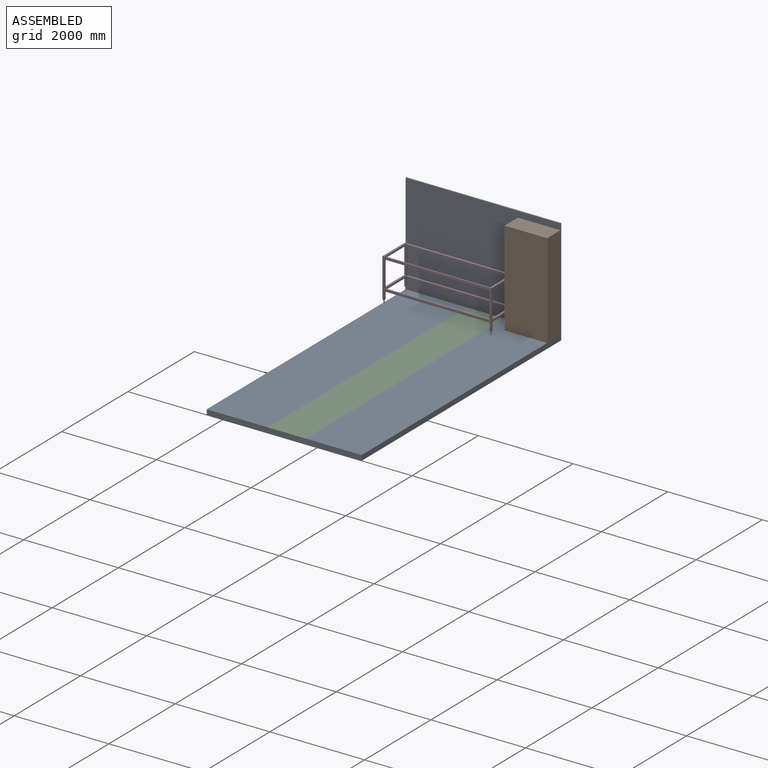
[diagram: assembled view]
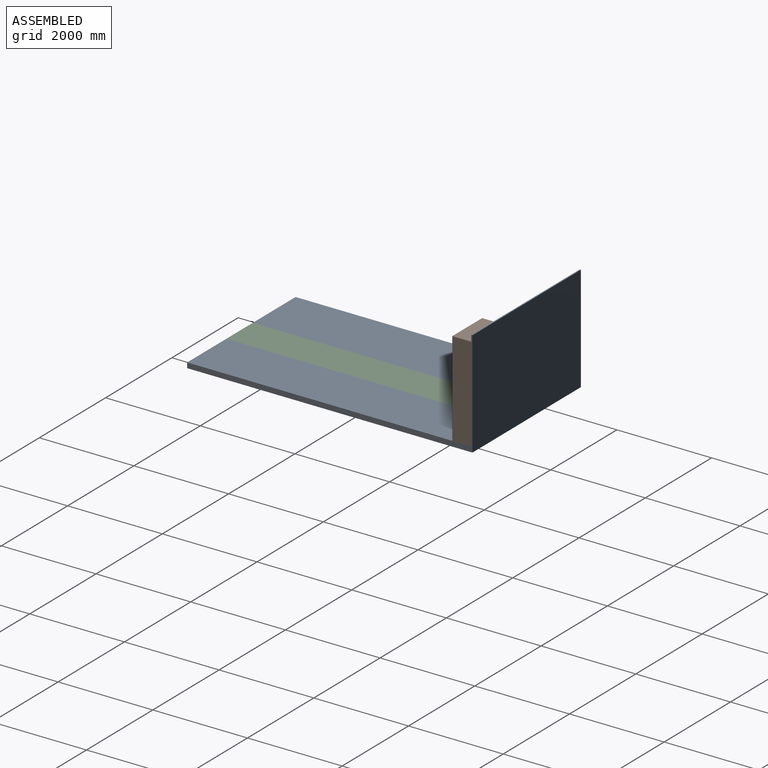
[diagram: assembled view, second angle]
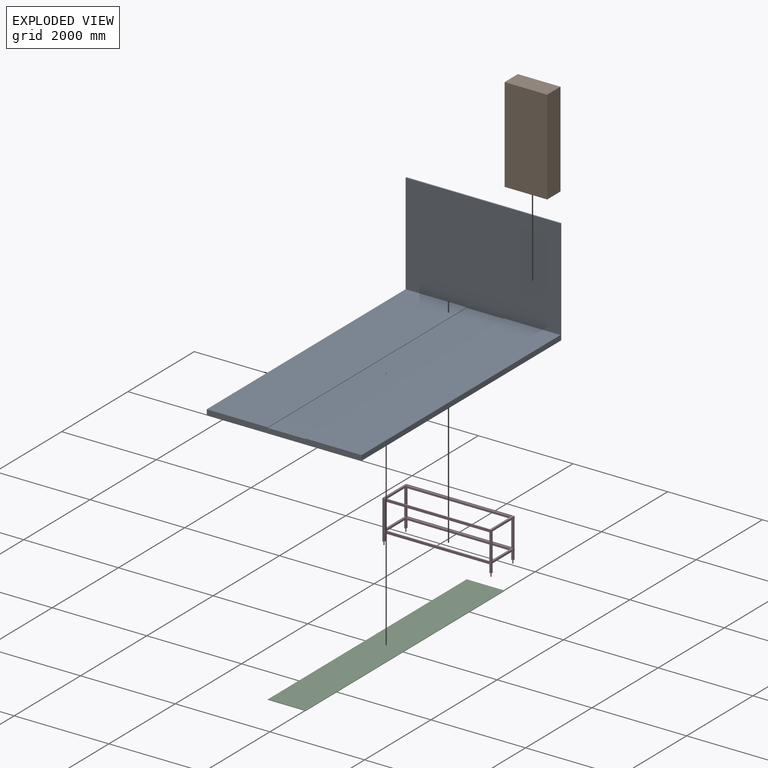
[diagram: exploded view]
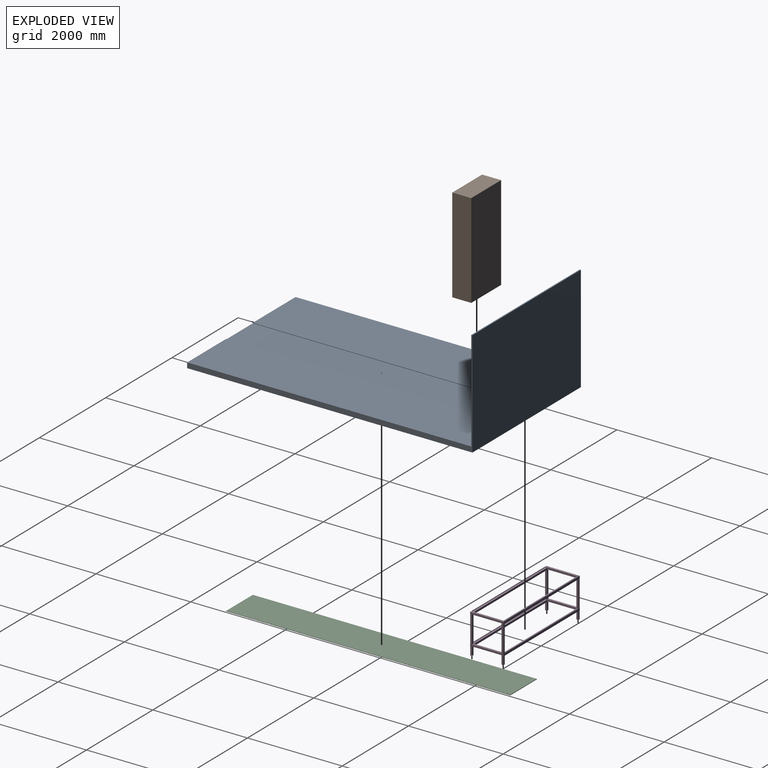
[diagram: exploded view, second angle]
ASSEMBLY  parts=4 mates=5
PART A: 12 faces, bbox 3270x6025x2240.3 mm
  f0: plane 6000x800mm, normal (0,0,1), area 4800000mm2, adj f2,f5,f7,f9
  f1: plane 6025x2240.29mm, normal (-1,0,0), area 716007.3mm2, adj f2,f4,f6,f9,f10,f11
  f2: plane 3270x110mm, normal (0,-1,0), area 351700mm2, adj f0,f1,f3,f4,f5,f6,f7,f8
  f3: plane 6025x2240.29mm, normal (1,0,0), area 716007.3mm2, adj f2,f4,f8,f9,f10,f11
  f4: plane 6025x3270mm, normal (0,0,-1), area 19701750mm2, adj f1,f2,f3,f11
  f5: plane 6000x10mm, normal (1,0,0), area 60000mm2, adj f0,f2,f6,f9
  f6: plane 6000x1290mm, normal (0,0,1), area 7740000mm2, adj f1,f2,f5,f9
  f7: plane 6000x10mm, normal (-1,0,0), area 60000mm2, adj f0,f2,f8,f9
  f8: plane 6000x1180mm, normal (0,0,1), area 7080000mm2, adj f2,f3,f7,f9
  f9: plane 3270x2140.29mm, normal (0,-1,0), area 6974054.6mm2, adj f0,f1,f3,f5,f6,f7,f8,f10
  f10: plane 3270x25mm, normal (0,0,1), area 81750mm2, adj f1,f3,f9,f11
  f11: plane 3270x2240.29mm, normal (0,1,0), area 7325754.6mm2, adj f1,f3,f4,f10
PART B: 6 faces, bbox 900x400x2000 mm
  f0: plane 2000x900mm, normal (0,1,0), area 1800000mm2, adj f1,f3,f4,f5
  f1: plane 2000x400mm, normal (-1,0,0), area 800000mm2, adj f0,f2,f4,f5
  f2: plane 2000x900mm, normal (0,-1,0), area 1800000mm2, adj f1,f3,f4,f5
  f3: plane 2000x400mm, normal (1,0,0), area 800000mm2, adj f0,f2,f4,f5
  f4: plane 900x400mm, normal (0,0,1), area 360000mm2, adj f0,f1,f2,f3
  f5: plane 900x400mm, normal (0,0,-1), area 360000mm2, adj f0,f1,f2,f3
PART C: 6 faces, bbox 800x6000x10 mm
  f0: plane 800x10mm, normal (0,1,0), area 8000mm2, adj f1,f3,f4,f5
  f1: plane 6000x10mm, normal (-1,0,0), area 60000mm2, adj f0,f2,f4,f5
  f2: plane 800x10mm, normal (0,-1,0), area 8000mm2, adj f1,f3,f4,f5
  f3: plane 6000x10mm, normal (1,0,0), area 60000mm2, adj f0,f2,f4,f5
  f4: plane 6000x800mm, normal (0,0,1), area 4800000mm2, adj f0,f1,f2,f3
  f5: plane 6000x800mm, normal (0,0,-1), area 4800000mm2, adj f0,f1,f2,f3
PART D: 59 faces, bbox 2300x706x900 mm
  f0: plane 168x40mm, normal (0,1,0), area 6720mm2, adj f5,f7,f8,f17
  f1: plane 558x40mm, normal (0,1,0), area 22320mm2, adj f2,f5,f15,f21
  f2: plane 700x598mm, normal (1,0,0), area 70400mm2, adj f1,f4,f6,f13,f14,f15,f18,f23
  f3: plane 700x40mm, normal (1,0,0), area 25760mm2, adj f4,f9,f12,f16,f20,f38,f45,f49
  f4: plane 2300x598mm, normal (0,-1,0), area 134400mm2, adj f2,f3,f5,f12,f14,f15,f16,f26
  f5: plane 830x706mm, normal (-1,0,0), area 116624mm2, adj f0,f1,f4,f6,f8,f9,f12,f13
  f6: plane 2300x208mm, normal (0,-1,0), area 103200mm2, adj f2,f5,f7,f8,f13,f17,f18,f26
  f7: plane 168x40mm, normal (1,0,0), area 6720mm2, adj f0,f6,f8,f17
  f8: plane 40x40mm, normal (0,0,-1), area 1204.8mm2, adj f0,f5,f6,f7,f10
  f9: plane 2300x706mm, normal (0,0,1), area 69800mm2, adj f3,f5,f19,f20,f27,f28,f48,f49
  f10: cylinder r=11.22mm len=70mm, axis (0,0,1), area 4933.1mm2, adj f8,f11
  f11: plane 22.43x22.43mm, normal (0,0,-1), area 395.2mm2, adj f10
  f12: plane 620x40mm, normal (0,0,-1), area 24800mm2, adj f3,f4,f5,f38
  f13: plane 620x40mm, normal (0,0,-1), area 24800mm2, adj f2,f5,f6,f39
  f14: plane 620x40mm, normal (0,0,1), area 24800mm2, adj f2,f4,f5,f38
  f15: plane 2300x43mm, normal (0,0,-1), area 95700mm2, adj f1,f2,f4,f5,f19,f25,f26,f28
  f16: plane 2220x40mm, normal (0,0,1), area 88800mm2, adj f3,f4,f20,f27
  f17: plane 2300x43mm, normal (0,0,-1), area 95700mm2, adj f0,f5,f6,f7,f22,f24,f28,f29
  f18: plane 2220x40mm, normal (0,0,1), area 88800mm2, adj f2,f6,f23,f26
  f19: plane 2300x52mm, normal (0,1,0), area 119600mm2, adj f5,f9,f15,f28
  f20: plane 2220x12mm, normal (0,-1,0), area 26640mm2, adj f3,f9,f16,f27
  f21: plane 2300x3mm, normal (0,0,1), area 6900mm2, adj f1,f5,f22,f23,f25,f28
  f22: plane 2300x52mm, normal (0,1,0), area 119600mm2, adj f5,f17,f21,f28
  f23: plane 2220x12mm, normal (0,-1,0), area 26640mm2, adj f2,f18,f21,f26
  f24: plane 168x40mm, normal (0,1,0), area 6720mm2, adj f17,f28,f29,f30
  f25: plane 558x40mm, normal (0,1,0), area 22320mm2, adj f15,f21,f26,f28
  f26: plane 700x598mm, normal (-1,0,0), area 70400mm2, adj f4,f6,f15,f18,f23,f25,f34,f35
  f27: plane 700x40mm, normal (-1,0,0), area 25760mm2, adj f4,f9,f16,f20,f33,f38,f45,f49
  f28: plane 830x706mm, normal (1,0,0), area 116624mm2, adj f4,f6,f9,f15,f17,f19,f21,f22
  f29: plane 168x40mm, normal (-1,0,0), area 6720mm2, adj f6,f17,f24,f30
  f30: plane 40x40mm, normal (0,0,-1), area 1204.8mm2, adj f6,f24,f28,f29,f31
  f31: cylinder r=11.22mm len=70mm, axis (0,0,1), area 4933.1mm2, adj f30,f32
  f32: plane 22.43x22.43mm, normal (0,0,-1), area 395.2mm2, adj f31
  f33: plane 620x40mm, normal (0,0,-1), area 24800mm2, adj f4,f27,f28,f38
  f34: plane 620x40mm, normal (0,0,-1), area 24800mm2, adj f6,f26,f28,f39
  f35: plane 620x40mm, normal (0,0,1), area 24800mm2, adj f4,f26,f28,f38
  f36: plane 168x40mm, normal (0,-1,0), area 6720mm2, adj f5,f40,f41,f46
  f37: plane 558x40mm, normal (0,-1,0), area 22320mm2, adj f2,f5,f44,f50
  f38: plane 2300x598mm, normal (0,1,0), area 134400mm2, adj f2,f3,f5,f12,f14,f26,f27,f28
  f39: plane 2300x208mm, normal (0,1,0), area 103200mm2, adj f2,f5,f13,f26,f28,f34,f40,f41
  f40: plane 168x40mm, normal (1,0,0), area 6720mm2, adj f36,f39,f41,f46
  f41: plane 40x40mm, normal (0,0,-1), area 1204.8mm2, adj f5,f36,f39,f40,f42
  f42: cylinder r=11.22mm len=70mm, axis (0,0,1), area 4933.1mm2, adj f41,f43
  f43: plane 22.43x22.43mm, normal (0,0,-1), area 395.2mm2, adj f42
  f44: plane 2300x43mm, normal (0,0,-1), area 95700mm2, adj f2,f5,f26,f28,f37,f38,f48,f54
  f45: plane 2220x40mm, normal (0,0,1), area 88800mm2, adj f3,f27,f38,f49
  f46: plane 2300x43mm, normal (0,0,-1), area 95700mm2, adj f5,f28,f36,f39,f40,f51,f53,f55
  f47: plane 2220x40mm, normal (0,0,1), area 88800mm2, adj f2,f26,f39,f52
  f48: plane 2300x52mm, normal (0,-1,0), area 119600mm2, adj f5,f9,f28,f44
  f49: plane 2220x12mm, normal (0,1,0), area 26640mm2, adj f3,f9,f27,f45
  f50: plane 2300x3mm, normal (0,0,1), area 6900mm2, adj f5,f28,f37,f51,f52,f54
  f51: plane 2300x52mm, normal (0,-1,0), area 119600mm2, adj f5,f28,f46,f50
  f52: plane 2220x12mm, normal (0,1,0), area 26640mm2, adj f2,f26,f47,f50
  f53: plane 168x40mm, normal (0,-1,0), area 6720mm2, adj f28,f46,f55,f56
  f54: plane 558x40mm, normal (0,-1,0), area 22320mm2, adj f26,f28,f44,f50
  f55: plane 168x40mm, normal (-1,0,0), area 6720mm2, adj f39,f46,f53,f56
  f56: plane 40x40mm, normal (0,0,-1), area 1204.8mm2, adj f28,f39,f53,f55,f57
  f57: cylinder r=11.22mm len=70mm, axis (0,0,1), area 4933.1mm2, adj f56,f58
  f58: plane 22.43x22.43mm, normal (0,0,-1), area 395.2mm2, adj f57
PLACE A t=(-300.92,860.23,95.4)mm
PLACE B t=(434.08,860.23,105.4)mm
PLACE C t=(-300.92,860.23,95.4)mm
PLACE D t=(-1935.92,860.23,1005.4)mm
MATE fastened B.f5 <-> A.f8  axis (0,0,1) through (1334.08,860.23,105.4)mm
MATE planar B.f5 <-> A.f8  axis (0,0,-1) through (884.08,660.23,105.4)mm
MATE planar D.f10 <-> A.f6  axis (0,0,-1) through (-1915.92,840.23,105.4)mm
MATE fastened D.f11 <-> A.f6  axis (0,0,1) through (-1935.92,860.23,105.4)mm
MATE fastened A.f0 <-> C.f5  axis (0,0,1) through (154.08,860.23,95.4)mm
